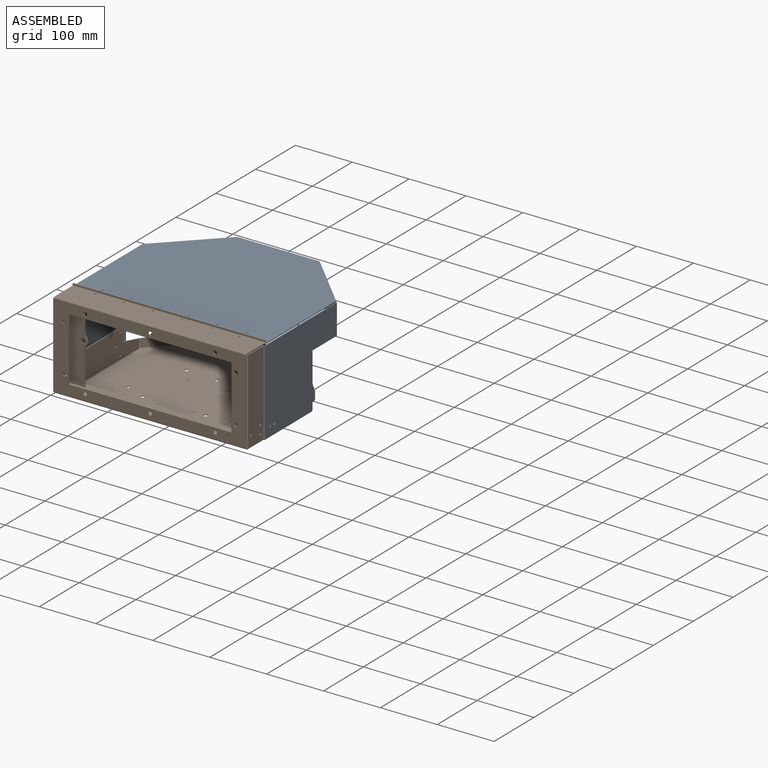
[diagram: assembled view]
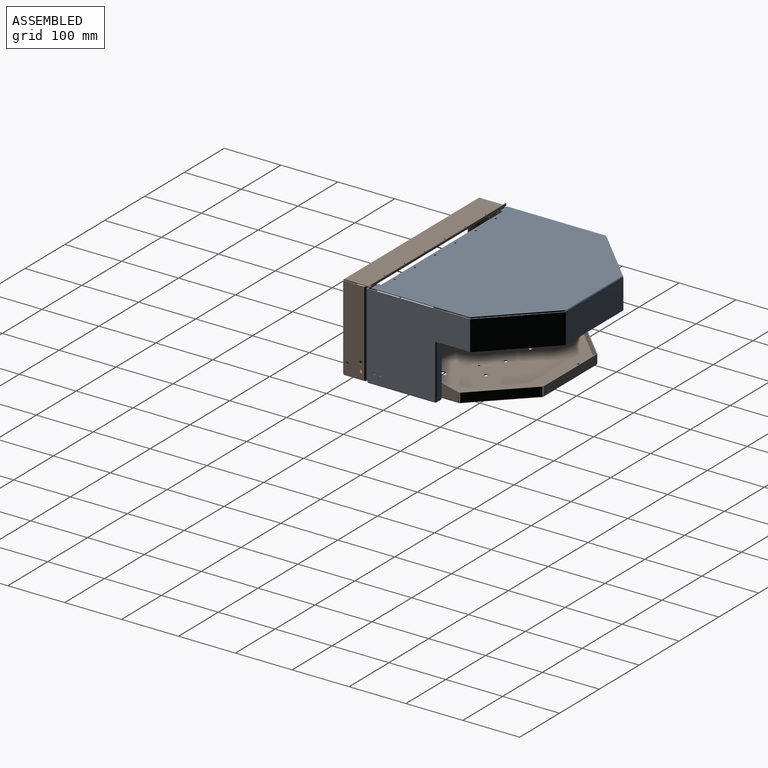
[diagram: assembled view, second angle]
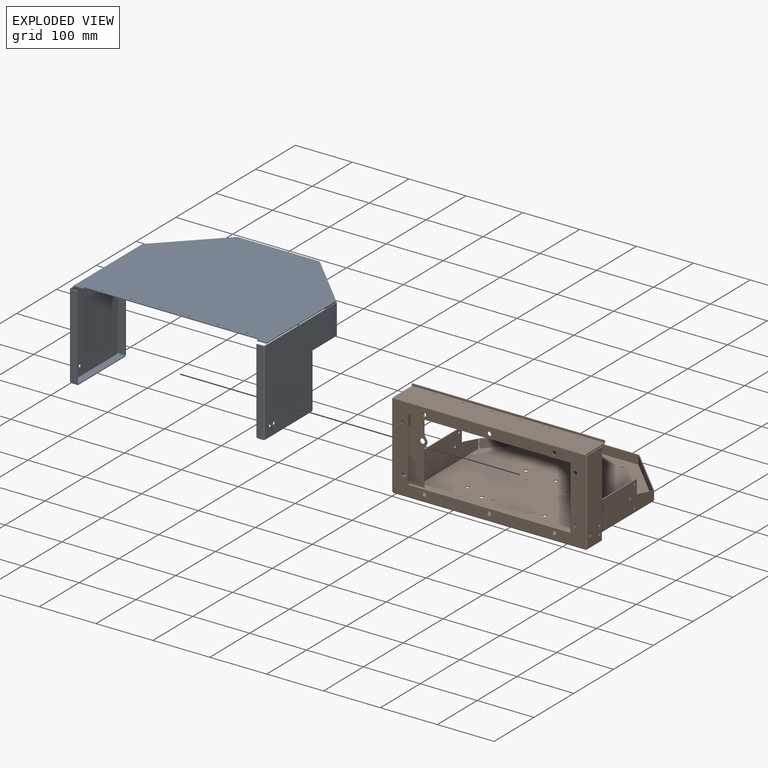
[diagram: exploded view]
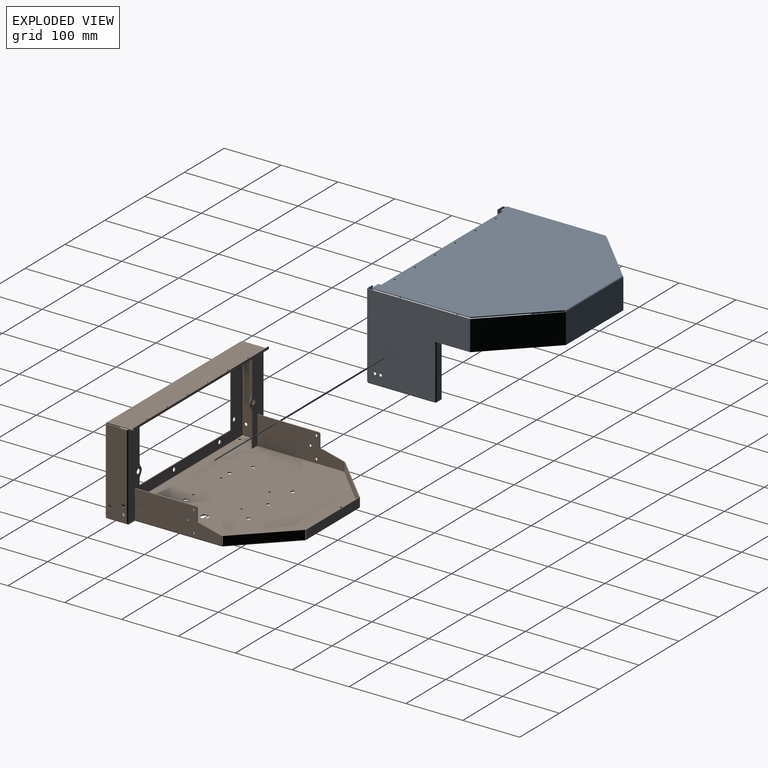
[diagram: exploded view, second angle]
ASSEMBLY  parts=2 mates=2
PART A: 124 faces, bbox 342.9x281.2x152.4 mm
  f0: plane 61.24x1.52mm, normal (0,0,1), area 90.9mm2, adj f4,f5,f19,f38
  f1: cylinder r=2.71mm len=5.41mm, axis (-1,0,0), area 25.9mm2, adj f4,f5
  f2: cylinder r=2.71mm len=5.41mm, axis (-1,0,0), area 25.9mm2, adj f4,f5
  f3: plane 178.99x1.52mm, normal (0,0,-1), area 272.8mm2, adj f4,f5,f33,f37
  f4: plane 178.99x147.83mm, normal (-1,0,0), area 20580mm2, adj f0,f1,f2,f3,f15,f19,f35,f39
  f5: plane 178.99x147.83mm, normal (1,0,0), area 20580mm2, adj f0,f1,f2,f3,f16,f17,f20,f36
  f6: plane 1.52x0.74mm, normal (-1,0,0), area 1.1mm2, adj f8,f11,f12,f13
  f7: plane 119.22x1.52mm, normal (1,0,0), area 181.7mm2, adj f8,f10,f11,f12
  f8: plane 11.68x1.52mm, normal (0,1,0), area 17.8mm2, adj f6,f7,f11,f12
  f9: plane 1.52x0.74mm, normal (-1,0,0), area 1.1mm2, adj f10,f11,f12,f14
  f10: plane 11.68x1.52mm, normal (0,-1,0), area 17.8mm2, adj f7,f9,f11,f12
  f11: plane 119.22x11.68mm, normal (0,0,1), area 1392.9mm2, adj f6,f7,f8,f9,f10,f15
  f12: plane 119.22x11.68mm, normal (0,0,-1), area 1392.9mm2, adj f6,f7,f8,f9,f10,f16
  f13: plane 2.29x2.29mm, normal (0,1,0), area 3.6mm2, adj f6,f15,f16,f18
  f14: plane 2.29x2.29mm, normal (0,-1,0), area 3.6mm2, adj f9,f15,f16,f34
  f15: cylinder r=2.29mm len=117.75mm, axis (0,1,0), area 422.9mm2, adj f4,f11,f13,f14
  f16: cylinder r=0.76mm len=117.75mm, axis (0,1,0), area 141mm2, adj f5,f12,f13,f14
  f17: plane 2.29x0.76mm, normal (0,0,-1), area 1.3mm2, adj f5,f19,f20,f22
  f18: plane 2.29x2.29mm, normal (0,0,1), area 3.6mm2, adj f13,f19,f20,f23
  f19: cylinder r=2.29mm len=95.25mm, axis (0,0,1), area 342.1mm2, adj f0,f4,f17,f18,f25
  f20: cylinder r=0.76mm len=95.25mm, axis (0,0,1), area 114mm2, adj f5,f17,f18,f26
  f21: plane 95.99x1.52mm, normal (1,0,0), area 146.3mm2, adj f22,f24,f25,f26
  f22: plane 11.68x1.52mm, normal (0,0,-1), area 17.8mm2, adj f17,f21,f25,f26
  f23: plane 1.52x0.74mm, normal (-1,0,0), area 1.1mm2, adj f18,f24,f25,f26
  f24: plane 11.68x1.52mm, normal (0,0,1), area 17.8mm2, adj f21,f23,f25,f26
  f25: plane 95.99x11.68mm, normal (0,1,0), area 1121.5mm2, adj f19,f21,f22,f23,f24
  f26: plane 95.99x11.68mm, normal (0,-1,0), area 1121.5mm2, adj f20,f21,f22,f23,f24
  f27: plane 1.52x0.74mm, normal (-1,0,0), area 1.1mm2, adj f29,f31,f32,f34
  f28: plane 148.56x1.52mm, normal (1,0,0), area 226.4mm2, adj f29,f30,f31,f32
  f29: plane 11.68x1.52mm, normal (0,0,1), area 17.8mm2, adj f27,f28,f31,f32
  f30: plane 11.68x1.52mm, normal (0,0,-1), area 17.8mm2, adj f28,f31,f32,f33
  f31: plane 148.56x11.68mm, normal (0,-1,0), area 1735.8mm2, adj f27,f28,f29,f30,f35
  f32: plane 148.56x11.68mm, normal (0,1,0), area 1735.8mm2, adj f27,f28,f29,f30,f36
  f33: plane 2.29x2.29mm, normal (0,0,-1), area 3.6mm2, adj f3,f30,f35,f36
  f34: plane 2.29x2.29mm, normal (0,0,1), area 3.6mm2, adj f14,f27,f35,f36
  f35: cylinder r=2.29mm len=147.83mm, axis (0,0,-1), area 530.9mm2, adj f4,f31,f33,f34
  f36: cylinder r=0.76mm len=147.83mm, axis (0,0,-1), area 177mm2, adj f5,f32,f33,f34
  f37: plane 1.75x1.62mm, normal (0,0,-1), area 1.8mm2, adj f3,f39,f40,f42
  f38: plane 1.75x1.62mm, normal (0,0,1), area 1.8mm2, adj f0,f39,f40,f41
  f39: cylinder r=2.29mm len=52.58mm, axis (0,0,-1), area 94.4mm2, adj f4,f37,f38,f43
  f40: cylinder r=0.76mm len=52.58mm, axis (0,0,-1), area 31.5mm2, adj f5,f37,f38,f44
  f41: plane 98.7x98.7mm, normal (0,0,1), area 210.4mm2, adj f38,f43,f44,f46
  f42: plane 98.7x98.7mm, normal (0,0,-1), area 210.4mm2, adj f37,f43,f44,f45
  f43: plane 97.62x97.62mm, normal (-0.71,0.71,0), area 7258.7mm2, adj f39,f41,f42,f47
  f44: plane 97.62x97.62mm, normal (0.71,-0.71,0), area 7258.7mm2, adj f40,f41,f42,f48
  f45: plane 1.75x1.62mm, normal (0,0,-1), area 1.8mm2, adj f42,f47,f48,f72
  f46: plane 1.75x1.62mm, normal (0,0,1), area 1.8mm2, adj f41,f47,f48,f68
  f47: cylinder r=2.29mm len=52.58mm, axis (0,0,-1), area 94.4mm2, adj f43,f45,f46,f69
  f48: cylinder r=0.76mm len=52.58mm, axis (0,0,-1), area 31.5mm2, adj f44,f45,f46,f70
  f49: plane 1.52x1.08mm, normal (0,1,0), area 1.6mm2, adj f56,f66,f67,f72
  f50: plane 16.79x1.52mm, normal (0,-1,0), area 25.6mm2, adj f51,f65,f66,f67
  f51: plane 5.08x1.52mm, normal (-1,0,0), area 7.7mm2, adj f50,f52,f66,f67
  f52: plane 306.17x1.52mm, normal (0,-1,0), area 466.6mm2, adj f51,f53,f66,f67
  f53: plane 5.08x1.52mm, normal (1,0,0), area 7.7mm2, adj f52,f54,f66,f67
  f54: plane 16.79x1.52mm, normal (0,-1,0), area 25.6mm2, adj f53,f55,f66,f67
  f55: plane 173.76x1.52mm, normal (-1,0,0), area 264.8mm2, adj f54,f56,f66,f67
  f56: plane 97.26x97.26mm, normal (-0.71,0.71,0), area 209.6mm2, adj f49,f55,f66,f67
  f57: plane 1.52x1.08mm, normal (0,1,0), area 1.6mm2, adj f58,f66,f67,f71
  f58: plane 97.26x97.26mm, normal (0.71,0.71,0), area 209.6mm2, adj f57,f65,f66,f67
  f59: cylinder r=1.63mm len=3.26mm, axis (0,0,1), area 15.6mm2, adj f66,f67
  f60: cylinder r=1.63mm len=3.26mm, axis (0,0,1), area 15.6mm2, adj f66,f67
  f61: cylinder r=1.63mm len=3.26mm, axis (0,0,1), area 15.6mm2, adj f66,f67
  f62: cylinder r=1.63mm len=3.26mm, axis (0,0,1), area 15.6mm2, adj f66,f67
  f63: cylinder r=1.63mm len=3.26mm, axis (0,0,1), area 15.6mm2, adj f66,f67
  f64: cylinder r=1.63mm len=3.26mm, axis (0,0,1), area 15.6mm2, adj f66,f67
  f65: plane 173.76x1.52mm, normal (1,0,0), area 264.8mm2, adj f50,f58,f66,f67
  f66: plane 339.75x271.02mm, normal (0,0,-1), area 81013.6mm2, adj f49,f50,f51,f52,f53,f54,f55,f56
  f67: plane 339.75x271.02mm, normal (0,0,1), area 81013.6mm2, adj f49,f50,f51,f52,f53,f54,f55,f56
  f68: plane 143.08x1.52mm, normal (0,0,1), area 218mm2, adj f46,f69,f70,f76
  f69: plane 143.08x52.58mm, normal (0,1,0), area 7522.7mm2, adj f47,f68,f73,f77
  f70: plane 143.08x52.58mm, normal (0,-1,0), area 7522.7mm2, adj f48,f68,f74,f78
  f71: plane 2.29x2.29mm, normal (1,0,0), area 3.6mm2, adj f57,f73,f74,f75
  f72: plane 2.29x2.29mm, normal (-1,0,0), area 3.6mm2, adj f45,f49,f73,f74
  f73: cylinder r=2.29mm len=143.08mm, axis (1,0,0), area 513.8mm2, adj f66,f69,f71,f72
  f74: cylinder r=0.76mm len=143.08mm, axis (1,0,0), area 171.3mm2, adj f67,f70,f71,f72
  f75: plane 1.75x1.62mm, normal (0,0,-1), area 1.8mm2, adj f71,f77,f78,f79
  f76: plane 1.75x1.62mm, normal (0,0,1), area 1.8mm2, adj f68,f77,f78,f80
  f77: cylinder r=2.29mm len=52.58mm, axis (0,0,-1), area 94.4mm2, adj f69,f75,f76,f81
  f78: cylinder r=0.76mm len=52.58mm, axis (0,0,-1), area 31.5mm2, adj f70,f75,f76,f82
  f79: plane 98.7x98.7mm, normal (0,0,-1), area 210.4mm2, adj f75,f81,f82,f84
  f80: plane 98.7x98.7mm, normal (0,0,1), area 210.4mm2, adj f76,f81,f82,f83
  f81: plane 97.62x97.62mm, normal (0.71,0.71,0), area 7258.7mm2, adj f77,f79,f80,f85
  f82: plane 97.62x97.62mm, normal (-0.71,-0.71,0), area 7258.7mm2, adj f78,f79,f80,f86
  f83: plane 1.75x1.62mm, normal (0,0,1), area 1.8mm2, adj f80,f85,f86,f90
  f84: plane 1.75x1.62mm, normal (0,0,-1), area 1.8mm2, adj f79,f85,f86,f87
  f85: cylinder r=2.29mm len=52.58mm, axis (0,0,1), area 94.4mm2, adj f81,f83,f84,f91
  f86: cylinder r=0.76mm len=52.58mm, axis (0,0,1), area 31.5mm2, adj f82,f83,f84,f92
  f87: plane 178.99x1.52mm, normal (0,0,-1), area 272.8mm2, adj f84,f91,f92,f121
  f88: cylinder r=2.71mm len=5.41mm, axis (1,0,0), area 25.9mm2, adj f91,f92
  f89: cylinder r=2.71mm len=5.41mm, axis (1,0,0), area 25.9mm2, adj f91,f92
  f90: plane 61.24x1.52mm, normal (0,0,1), area 90.9mm2, adj f83,f91,f92,f106
  f91: plane 178.99x147.83mm, normal (1,0,0), area 20580mm2, adj f85,f87,f88,f89,f90,f102,f106,f122
  f92: plane 178.99x147.83mm, normal (-1,0,0), area 20580mm2, adj f86,f87,f88,f89,f90,f103,f104,f107
  f93: plane 1.52x0.74mm, normal (1,0,0), area 1.1mm2, adj f95,f98,f99,f100
  f94: plane 119.22x1.52mm, normal (-1,0,0), area 181.7mm2, adj f95,f97,f98,f99
  f95: plane 11.68x1.52mm, normal (0,-1,0), area 17.8mm2, adj f93,f94,f98,f99
  f96: plane 1.52x0.74mm, normal (1,0,0), area 1.1mm2, adj f97,f98,f99,f101
  f97: plane 11.68x1.52mm, normal (0,1,0), area 17.8mm2, adj f94,f96,f98,f99
  f98: plane 119.22x11.68mm, normal (0,0,1), area 1392.9mm2, adj f93,f94,f95,f96,f97,f102
  f99: plane 119.22x11.68mm, normal (0,0,-1), area 1392.9mm2, adj f93,f94,f95,f96,f97,f103
  f100: plane 2.29x2.29mm, normal (0,-1,0), area 3.6mm2, adj f93,f102,f103,f120
  f101: plane 2.29x2.29mm, normal (0,1,0), area 3.6mm2, adj f96,f102,f103,f105
  f102: cylinder r=2.29mm len=117.75mm, axis (0,-1,0), area 422.9mm2, adj f91,f98,f100,f101
  f103: cylinder r=0.76mm len=117.75mm, axis (0,-1,0), area 141mm2, adj f92,f99,f100,f101
  f104: plane 2.29x0.76mm, normal (0,0,-1), area 1.3mm2, adj f92,f106,f107,f111
  f105: plane 2.29x2.29mm, normal (0,0,1), area 3.6mm2, adj f101,f106,f107,f108
  f106: cylinder r=2.29mm len=95.25mm, axis (0,0,1), area 342.1mm2, adj f90,f91,f104,f105,f112
  f107: cylinder r=0.76mm len=95.25mm, axis (0,0,1), area 114mm2, adj f92,f104,f105,f113
  f108: plane 1.52x0.74mm, normal (1,0,0), area 1.1mm2, adj f105,f110,f112,f113
  f109: plane 95.99x1.52mm, normal (-1,0,0), area 146.3mm2, adj f110,f111,f112,f113
  f110: plane 11.68x1.52mm, normal (0,0,1), area 17.8mm2, adj f108,f109,f112,f113
  f111: plane 11.68x1.52mm, normal (0,0,-1), area 17.8mm2, adj f104,f109,f112,f113
  f112: plane 95.99x11.68mm, normal (0,1,0), area 1121.5mm2, adj f106,f108,f109,f110,f111
  f113: plane 95.99x11.68mm, normal (0,-1,0), area 1121.5mm2, adj f107,f108,f109,f110,f111
  f114: plane 148.56x1.52mm, normal (-1,0,0), area 226.4mm2, adj f115,f117,f118,f119
  f115: plane 11.68x1.52mm, normal (0,0,-1), area 17.8mm2, adj f114,f118,f119,f121
  f116: plane 1.52x0.74mm, normal (1,0,0), area 1.1mm2, adj f117,f118,f119,f120
  f117: plane 11.68x1.52mm, normal (0,0,1), area 17.8mm2, adj f114,f116,f118,f119
  f118: plane 148.56x11.68mm, normal (0,-1,0), area 1735.8mm2, adj f114,f115,f116,f117,f122
  f119: plane 148.56x11.68mm, normal (0,1,0), area 1735.8mm2, adj f114,f115,f116,f117,f123
  f120: plane 2.29x2.29mm, normal (0,0,1), area 3.6mm2, adj f100,f116,f122,f123
  f121: plane 2.29x2.29mm, normal (0,0,-1), area 3.6mm2, adj f87,f115,f122,f123
  f122: cylinder r=2.29mm len=147.83mm, axis (0,0,1), area 530.9mm2, adj f91,f118,f120,f121
  f123: cylinder r=0.76mm len=147.83mm, axis (0,0,1), area 177mm2, adj f92,f119,f120,f121
PART B: 188 faces, bbox 342.9x280.7x156.2 mm
  f0: plane 339.13x276.09mm, normal (0,0,-1), area 77629.6mm2, adj f10,f11,f22,f40,f42,f43,f44,f64
  f1: plane 148.63x33.08mm, normal (0,1,0), area 4123mm2, adj f7,f52,f54,f55,f56,f134,f135,f138
  f2: plane 148.63x33.08mm, normal (0,-1,0), area 4123mm2, adj f7,f53,f54,f55,f56,f134,f135,f138
  f3: plane 148.63x33.08mm, normal (0,1,0), area 4123mm2, adj f8,f59,f61,f62,f63,f136,f137,f139
  f4: plane 148.63x33.08mm, normal (0,-1,0), area 4123mm2, adj f8,f60,f61,f62,f63,f136,f137,f139
  f5: plane 1.98x1.52mm, normal (0,0,1), area 3mm2, adj f121,f122,f155,f161
  f6: plane 1.98x1.52mm, normal (0,0,1), area 3mm2, adj f113,f114,f154,f163
  f7: plane 59.19x1.52mm, normal (1,0,0), area 90.2mm2, adj f1,f2,f55,f172
  f8: plane 60.26x1.52mm, normal (-1,0,0), area 91.8mm2, adj f3,f4,f136,f175
  f9: plane 339.13x276.09mm, normal (0,0,1), area 77629.6mm2, adj f10,f11,f22,f41,f42,f43,f44,f64
  f10: plane 1.52x0.13mm, normal (-1,0,0), area 0.2mm2, adj f0,f9,f43,f80
  f11: plane 1.52x0.13mm, normal (1,0,0), area 0.2mm2, adj f0,f9,f22,f77
  f12: plane 44.58x1.52mm, normal (-1,0,0), area 67.9mm2, adj f13,f14,f29,f67
  f13: plane 339.13x44.58mm, normal (0,0,1), area 15067.4mm2, adj f12,f15,f31,f69,f140,f141,f142,f143
  f14: plane 339.13x44.58mm, normal (0,0,-1), area 15067.4mm2, adj f12,f15,f32,f68,f140,f141,f142,f143
  f15: plane 44.58x1.52mm, normal (1,0,0), area 67.9mm2, adj f13,f14,f30,f66
  f16: plane 148.63x35.05mm, normal (1,0,0), area 5140.9mm2, adj f18,f35,f37,f59,f149,f150,f153
  f17: plane 148.63x35.05mm, normal (-1,0,0), area 5140.9mm2, adj f18,f36,f37,f60,f149,f150,f153
  f18: plane 35.05x1.52mm, normal (0,0,-1), area 53.4mm2, adj f16,f17,f34,f58
  f19: plane 148.63x35.05mm, normal (-1,0,0), area 5140.9mm2, adj f21,f47,f49,f52,f148,f151,f152
  f20: plane 148.63x35.05mm, normal (1,0,0), area 5140.9mm2, adj f21,f48,f49,f53,f148,f151,f152
  f21: plane 35.05x1.52mm, normal (0,0,1), area 53.4mm2, adj f19,f20,f46,f51
  f22: plane 14.88x1.52mm, normal (0,1,0), area 22.7mm2, adj f0,f9,f11,f42
  f23: plane 338.33x147.83mm, normal (0,1,0), area 17901.9mm2, adj f25,f26,f27,f28,f32,f36,f41,f48
  f24: plane 338.33x147.83mm, normal (0,-1,0), area 17901.9mm2, adj f25,f26,f27,f28,f31,f35,f40,f47
  f25: plane 111.13x1.52mm, normal (-1,0,0), area 169.4mm2, adj f23,f24,f26,f28
  f26: plane 285.75x1.52mm, normal (0,0,1), area 435.5mm2, adj f23,f24,f25,f27
  f27: plane 111.13x1.52mm, normal (1,0,0), area 169.4mm2, adj f23,f24,f26,f28
  f28: plane 285.75x1.52mm, normal (0,0,-1), area 435.5mm2, adj f23,f24,f25,f27
  f29: bspline ~2.3x2.3mm, area 3.7mm2, adj f12,f31,f32,f46
  f30: bspline ~2.3x2.3mm, area 3.7mm2, adj f15,f31,f32,f33
  f31: cylinder r=2.29mm len=339.13mm, axis (1,0,0), area 1216.3mm2, adj f13,f24,f29,f30
  f32: cylinder r=0.76mm len=339.13mm, axis (1,0,0), area 405.4mm2, adj f14,f23,f29,f30
  f33: bspline ~2.3x2.3mm, area 3.7mm2, adj f30,f35,f36,f37
  f34: bspline ~2.3x2.3mm, area 3.7mm2, adj f18,f35,f36,f38
  f35: cylinder r=2.29mm len=148.63mm, axis (0,0,-1), area 532.3mm2, adj f16,f24,f33,f34
  f36: cylinder r=0.76mm len=148.63mm, axis (0,0,-1), area 177.4mm2, adj f17,f23,f33,f34
  f37: plane 35.05x1.52mm, normal (0,0,1), area 53.4mm2, adj f16,f17,f33,f57
  f38: bspline ~2.3x2.3mm, area 3.7mm2, adj f34,f40,f41,f42
  f39: bspline ~2.3x2.3mm, area 3.7mm2, adj f40,f41,f44,f45
  f40: cylinder r=2.29mm len=339.13mm, axis (-1,0,0), area 1216.3mm2, adj f0,f24,f38,f39
  f41: cylinder r=0.76mm len=339.13mm, axis (-1,0,0), area 405.4mm2, adj f9,f23,f38,f39
  f42: plane 37.34x1.52mm, normal (1,0,0), area 56.9mm2, adj f0,f9,f22,f38
  f43: plane 14.88x1.52mm, normal (0,1,0), area 22.7mm2, adj f0,f9,f10,f44
  f44: plane 37.34x1.52mm, normal (-1,0,0), area 56.9mm2, adj f0,f9,f39,f43
  f45: bspline ~2.3x2.3mm, area 3.7mm2, adj f39,f47,f48,f49
  f46: bspline ~2.3x2.3mm, area 3.7mm2, adj f21,f29,f47,f48
  f47: cylinder r=2.29mm len=148.63mm, axis (0,0,1), area 532.3mm2, adj f19,f24,f45,f46
  f48: cylinder r=0.76mm len=148.63mm, axis (0,0,1), area 177.4mm2, adj f20,f23,f45,f46
  f49: plane 35.05x1.52mm, normal (0,0,-1), area 53.4mm2, adj f19,f20,f45,f50
  f50: plane 2.29x2.29mm, normal (0,0,-1), area 3.6mm2, adj f49,f52,f53,f55
  f51: plane 2.29x2.29mm, normal (0,0,1), area 3.6mm2, adj f21,f52,f53,f54
  f52: cylinder r=2.29mm len=148.63mm, axis (0,0,1), area 533.7mm2, adj f1,f19,f50,f51
  f53: cylinder r=0.76mm len=148.63mm, axis (0,0,1), area 177.9mm2, adj f2,f20,f50,f51
  f54: plane 15.49x1.52mm, normal (0,0,1), area 23.6mm2, adj f1,f2,f51,f134
  f55: plane 27.81x1.52mm, normal (0,0,-1), area 42.4mm2, adj f1,f2,f7,f50
  f56: plane 60.26x1.52mm, normal (1,0,0), area 91.8mm2, adj f1,f2,f135,f173
  f57: plane 2.29x2.29mm, normal (0,0,1), area 3.6mm2, adj f37,f59,f60,f62
  f58: plane 2.29x2.29mm, normal (0,0,-1), area 3.6mm2, adj f18,f59,f60,f61
  f59: cylinder r=2.29mm len=148.63mm, axis (0,0,-1), area 533.7mm2, adj f3,f16,f57,f58
  f60: cylinder r=0.76mm len=148.63mm, axis (0,0,-1), area 177.9mm2, adj f4,f17,f57,f58
  f61: plane 27.81x1.52mm, normal (0,0,-1), area 42.4mm2, adj f3,f4,f58,f63
  f62: plane 15.49x1.52mm, normal (0,0,1), area 23.6mm2, adj f3,f4,f57,f137
  f63: plane 59.19x1.52mm, normal (-1,0,0), area 90.2mm2, adj f3,f4,f61,f174
  f64: cylinder r=2.04mm len=4.09mm, axis (0,0,-1), area 19.6mm2, adj f0,f9
  f65: cylinder r=2.04mm len=4.09mm, axis (0,0,-1), area 19.6mm2, adj f0,f9
  f66: plane 2.29x2.29mm, normal (1,0,0), area 3.6mm2, adj f15,f68,f69,f71
  f67: plane 2.29x2.29mm, normal (-1,0,0), area 3.6mm2, adj f12,f68,f69,f70
  f68: cylinder r=2.29mm len=339.13mm, axis (-1,0,0), area 1217.8mm2, adj f14,f66,f67,f72
  f69: cylinder r=0.76mm len=339.13mm, axis (-1,0,0), area 405.9mm2, adj f13,f66,f67,f73
  f70: plane 3.05x1.52mm, normal (-1,0,0), area 4.6mm2, adj f67,f72,f73,f74
  f71: plane 3.05x1.52mm, normal (1,0,0), area 4.6mm2, adj f66,f72,f73,f74
  f72: plane 339.13x3.05mm, normal (0,1,0), area 1033.7mm2, adj f68,f70,f71,f74
  f73: plane 339.13x3.05mm, normal (0,-1,0), area 1033.7mm2, adj f69,f70,f71,f74
  f74: plane 339.13x1.52mm, normal (0,0,1), area 516.8mm2, adj f70,f71,f72,f73
  f75: plane 1.52x0.76mm, normal (0,-1,0), area 1.2mm2, adj f0,f9,f76,f108
  f76: plane 1.52x0.76mm, normal (1,0,0), area 1.2mm2, adj f0,f9,f75,f77
  f77: plane 3.05x1.52mm, normal (0,1,0), area 4.6mm2, adj f0,f9,f11,f76
  f78: plane 1.52x0.76mm, normal (-1,0,0), area 1.2mm2, adj f0,f9,f79,f80
  f79: plane 1.52x0.76mm, normal (0,-1,0), area 1.2mm2, adj f0,f9,f78,f117
  f80: plane 3.05x1.52mm, normal (0,1,0), area 4.6mm2, adj f0,f9,f10,f78
  f81: bspline ~2.3x1.7mm, area 3.7mm2, adj f83,f84,f85,f109
  f82: bspline ~2.3x1.7mm, area 3.7mm2, adj f83,f84,f89,f90
  f83: cylinder r=2.29mm len=87.17mm, axis (-0.71,0.71,0), area 434.1mm2, adj f0,f81,f82,f86
  f84: cylinder r=0.76mm len=86.09mm, axis (-0.71,0.71,0), area 144.7mm2, adj f9,f81,f82,f87
  f85: plane 15.11x1.08mm, normal (0.71,-0.71,0), area 23mm2, adj f81,f86,f87,f88
  f86: plane 85.42x85.42mm, normal (0.71,0.71,0), area 1825.6mm2, adj f83,f85,f88,f89
  f87: plane 85.42x85.42mm, normal (-0.71,-0.71,0), area 1825.6mm2, adj f84,f85,f88,f89
  f88: plane 86.5x86.5mm, normal (0,0,1), area 184.1mm2, adj f85,f86,f87,f89
  f89: plane 15.11x1.08mm, normal (-0.71,0.71,0), area 23mm2, adj f82,f86,f87,f88
  f90: bspline ~2.3x2.3mm, area 3.7mm2, adj f82,f92,f93,f94
  f91: bspline ~2.3x2.3mm, area 3.7mm2, adj f92,f93,f98,f99
  f92: cylinder r=2.29mm len=133.69mm, axis (-1,0,0), area 479.7mm2, adj f0,f90,f91,f95
  f93: cylinder r=0.76mm len=133.69mm, axis (-1,0,0), area 159.9mm2, adj f9,f90,f91,f96
  f94: plane 15.11x1.52mm, normal (1,0,0), area 23mm2, adj f90,f95,f96,f97
  f95: plane 133.5x15.11mm, normal (0,1,0), area 2017.6mm2, adj f92,f94,f97,f98
  f96: plane 133.5x15.11mm, normal (0,-1,0), area 2017.6mm2, adj f93,f94,f97,f98
  f97: plane 133.5x1.52mm, normal (0,0,1), area 203.5mm2, adj f94,f95,f96,f98
  f98: plane 15.11x1.52mm, normal (-1,0,0), area 23mm2, adj f91,f95,f96,f97
  f99: bspline ~2.3x1.7mm, area 3.7mm2, adj f91,f101,f102,f103
  f100: bspline ~2.29x1.69mm, area 3.7mm2, adj f101,f102,f107,f116
  f101: cylinder r=2.29mm len=87.17mm, axis (-0.71,-0.71,0), area 434.1mm2, adj f0,f99,f100,f104
  f102: cylinder r=0.76mm len=86.09mm, axis (-0.71,-0.71,0), area 144.7mm2, adj f9,f99,f100,f105
  f103: plane 15.11x1.08mm, normal (0.71,0.71,0), area 23mm2, adj f99,f104,f105,f106
  f104: plane 85.42x85.42mm, normal (-0.71,0.71,0), area 1825.6mm2, adj f101,f103,f106,f107
  f105: plane 85.42x85.42mm, normal (0.71,-0.71,0), area 1825.6mm2, adj f102,f103,f106,f107
  f106: plane 86.5x86.5mm, normal (0,0,1), area 184.1mm2, adj f103,f104,f105,f107
  f107: plane 15.11x1.08mm, normal (-0.71,-0.71,0), area 23mm2, adj f100,f104,f105,f106
  f108: plane 2.29x2.29mm, normal (0,-1,0), area 3.6mm2, adj f75,f110,f111,f112
  f109: bspline ~2.29x2.29mm, area 3.7mm2, adj f81,f110,f111,f115
  f110: cylinder r=2.29mm len=152.31mm, axis (0,1,0), area 546.8mm2, adj f0,f108,f109,f113
  f111: cylinder r=0.76mm len=152.31mm, axis (0,1,0), area 182.3mm2, adj f9,f108,f109,f114
  f112: plane 50.04x1.52mm, normal (0,-1,0), area 76.3mm2, adj f108,f113,f114,f156
  f113: plane 152.22x50.04mm, normal (1,0,0), area 6313.2mm2, adj f6,f110,f112,f115,f154,f156,f157,f162
  f114: plane 152.22x50.04mm, normal (-1,0,0), area 6313.2mm2, adj f6,f111,f112,f115,f154,f156,f157,f162
  f115: plane 15.11x1.52mm, normal (0,1,0), area 23mm2, adj f109,f113,f114,f154
  f116: bspline ~2.3x2.3mm, area 3.7mm2, adj f100,f118,f119,f120
  f117: plane 2.29x2.29mm, normal (0,-1,0), area 3.6mm2, adj f79,f118,f119,f123
  f118: cylinder r=2.29mm len=152.31mm, axis (0,-1,0), area 546.8mm2, adj f0,f116,f117,f121
  f119: cylinder r=0.76mm len=152.31mm, axis (0,-1,0), area 182.3mm2, adj f9,f116,f117,f122
  f120: plane 15.11x1.52mm, normal (0,1,0), area 23mm2, adj f116,f121,f122,f155
  f121: plane 152.22x50.04mm, normal (-1,0,0), area 6313.2mm2, adj f5,f118,f120,f123,f155,f158,f159,f160
  f122: plane 152.22x50.04mm, normal (1,0,0), area 6313.2mm2, adj f5,f119,f120,f123,f155,f158,f159,f160
  f123: plane 50.04x1.52mm, normal (0,-1,0), area 76.3mm2, adj f117,f121,f122,f159
  f124: cylinder r=3.38mm len=6.76mm, axis (0,1,0), area 32.3mm2, adj f23,f24
  f125: cylinder r=3.38mm len=6.76mm, axis (0,1,0), area 32.3mm2, adj f23,f24
  f126: cylinder r=3.38mm len=6.76mm, axis (0,1,0), area 32.3mm2, adj f23,f24
  f127: cylinder r=3.38mm len=6.76mm, axis (0,1,0), area 32.3mm2, adj f23,f24
  f128: cylinder r=3.38mm len=6.76mm, axis (0,1,0), area 32.3mm2, adj f23,f24
  f129: cylinder r=3.38mm len=6.76mm, axis (0,1,0), area 32.3mm2, adj f23,f24
  f130: cylinder r=3.38mm len=6.76mm, axis (0,1,0), area 32.3mm2, adj f23,f24
  f131: cylinder r=3.38mm len=6.76mm, axis (0,1,0), area 32.3mm2, adj f23,f24
  f132: cylinder r=3.38mm len=6.76mm, axis (0,1,0), area 32.3mm2, adj f23,f24
  f133: cylinder r=3.38mm len=6.76mm, axis (0,1,0), area 32.3mm2, adj f23,f24
  f134: plane 1.52x1.47mm, normal (1,0,0), area 2.2mm2, adj f1,f2,f54,f135
  f135: plane 12.32x1.52mm, normal (0,0,1), area 18.8mm2, adj f1,f2,f56,f134
  f136: plane 12.32x1.52mm, normal (0,0,1), area 18.8mm2, adj f3,f4,f8,f137
  f137: plane 1.52x1.47mm, normal (-1,0,0), area 2.2mm2, adj f3,f4,f62,f136
  f138: cylinder r=4.37mm len=8.74mm, axis (0,1,0), area 41.8mm2, adj f1,f2
  f139: cylinder r=4.37mm len=8.74mm, axis (0,1,0), area 41.8mm2, adj f3,f4
  f140: cylinder r=1.63mm len=3.26mm, axis (0,0,-1), area 15.6mm2, adj f13,f14
  f141: cylinder r=1.63mm len=3.26mm, axis (0,0,-1), area 15.6mm2, adj f13,f14
  f142: cylinder r=1.63mm len=3.26mm, axis (0,0,-1), area 15.6mm2, adj f13,f14
  f143: cylinder r=1.63mm len=3.26mm, axis (0,0,-1), area 15.6mm2, adj f13,f14
  f144: cylinder r=1.63mm len=3.26mm, axis (0,0,-1), area 15.6mm2, adj f13,f14
  f145: cylinder r=1.63mm len=3.26mm, axis (0,0,-1), area 15.6mm2, adj f13,f14
  f146: cylinder r=2.04mm len=4.09mm, axis (0,0,1), area 19.6mm2, adj f0,f9
  f147: cylinder r=2.04mm len=4.09mm, axis (0,0,1), area 19.6mm2, adj f0,f9
  f148: cylinder r=2.71mm len=5.41mm, axis (1,0,0), area 25.9mm2, adj f19,f20
  f149: cylinder r=2.71mm len=5.41mm, axis (1,0,0), area 25.9mm2, adj f16,f17
  f150: cylinder r=2.71mm len=5.41mm, axis (1,0,0), area 25.9mm2, adj f16,f17
  f151: cylinder r=2.71mm len=5.41mm, axis (1,0,0), area 25.9mm2, adj f19,f20
  f152: cylinder r=2.71mm len=5.41mm, axis (1,0,0), area 25.9mm2, adj f19,f20
  f153: cylinder r=2.71mm len=5.41mm, axis (1,0,0), area 25.9mm2, adj f16,f17
  f154: plane 38.1x9.53mm, normal (0,0.24,0.97), area 59.9mm2, adj f6,f113,f114,f115
  f155: plane 38.1x9.53mm, normal (0,0.24,0.97), area 59.9mm2, adj f5,f120,f121,f122
  f156: plane 107.06x1.52mm, normal (0,0,1), area 163.2mm2, adj f112,f113,f114,f162
  f157: plane 20.32x1.52mm, normal (0,1,0), area 31mm2, adj f113,f114,f162,f163
  f158: plane 20.32x1.52mm, normal (0,1,0), area 31mm2, adj f121,f122,f160,f161
  f159: plane 107.06x1.52mm, normal (0,0,1), area 163.2mm2, adj f121,f122,f123,f160
  f160: cylinder r=2.54mm len=2.54mm, axis (-1,0,0), area 6.1mm2, adj f121,f122,f158,f159
  f161: cylinder r=2.54mm len=2.54mm, axis (1,0,0), area 6.1mm2, adj f5,f121,f122,f158
  f162: cylinder r=2.54mm len=2.54mm, axis (1,0,0), area 6.1mm2, adj f113,f114,f156,f157
  f163: cylinder r=2.54mm len=2.54mm, axis (-1,0,0), area 6.1mm2, adj f6,f113,f114,f157
  f164: cylinder r=2.04mm len=4.09mm, axis (1,0,0), area 19.6mm2, adj f113,f114
  f165: cylinder r=2.04mm len=4.09mm, axis (1,0,0), area 19.6mm2, adj f121,f122
  f166: cylinder r=2.04mm len=4.09mm, axis (1,0,0), area 19.6mm2, adj f121,f122
  f167: cylinder r=2.04mm len=4.09mm, axis (1,0,0), area 19.6mm2, adj f113,f114
  f168: cylinder r=2.04mm len=4.09mm, axis (1,0,0), area 19.6mm2, adj f121,f122
  f169: cylinder r=2.04mm len=4.09mm, axis (1,0,0), area 19.6mm2, adj f113,f114
  f170: cylinder r=8.18mm len=10.86mm, axis (0,-1,0), area 18.1mm2, adj f3,f4,f174,f175
  f171: cylinder r=8.18mm len=10.86mm, axis (0,-1,0), area 18.1mm2, adj f1,f2,f172,f173
  f172: cylinder r=12.7mm len=8.43mm, axis (0,-1,0), area 14.1mm2, adj f1,f2,f7,f171
  f173: cylinder r=12.7mm len=8.43mm, axis (0,-1,0), area 14.1mm2, adj f1,f2,f56,f171
  f174: cylinder r=12.7mm len=8.43mm, axis (0,-1,0), area 14.1mm2, adj f3,f4,f63,f170
  f175: cylinder r=12.7mm len=8.43mm, axis (0,-1,0), area 14.1mm2, adj f3,f4,f8,f170
  f176: cylinder r=3.38mm len=6.76mm, axis (0,0,1), area 32.3mm2, adj f0,f9
  f177: cylinder r=3.38mm len=6.76mm, axis (0,0,1), area 32.3mm2, adj f0,f9
  f178: cylinder r=3.38mm len=6.76mm, axis (0,0,1), area 32.3mm2, adj f0,f9
  f179: cylinder r=3.38mm len=6.76mm, axis (0,0,1), area 32.3mm2, adj f0,f9
  f180: cylinder r=6.75mm len=13.49mm, axis (0,0,-1), area 64.6mm2, adj f0,f9
  f181: cylinder r=2.04mm len=4.09mm, axis (0,0,1), area 19.6mm2, adj f0,f9
  f182: cylinder r=2.04mm len=4.09mm, axis (0,0,1), area 19.6mm2, adj f0,f9
  f183: cylinder r=2.04mm len=4.09mm, axis (0,0,1), area 19.6mm2, adj f0,f9
  f184: cylinder r=2.04mm len=4.09mm, axis (0,0,1), area 19.6mm2, adj f0,f9
  f185: cylinder r=3.16mm len=6.32mm, axis (0,0,1), area 30.3mm2, adj f0,f9
  f186: cylinder r=3.16mm len=6.32mm, axis (0,0,1), area 30.3mm2, adj f0,f9
  f187: cylinder r=3.16mm len=6.32mm, axis (0,0,1), area 30.3mm2, adj f0,f9
PLACE A rot(axis=(0,1,0),180deg) t=(45.18,134.28,137.88)mm
PLACE B t=(-20.75,-6.17,62.79)mm
MATE parallel A.f91 <-> B.f19  axis (-1,0,0) through (-192.2,111.17,69.26)mm
MATE planar B.f19 <-> A.f91  axis (-1,0,0) through (-192.2,13.59,63.52)mm
